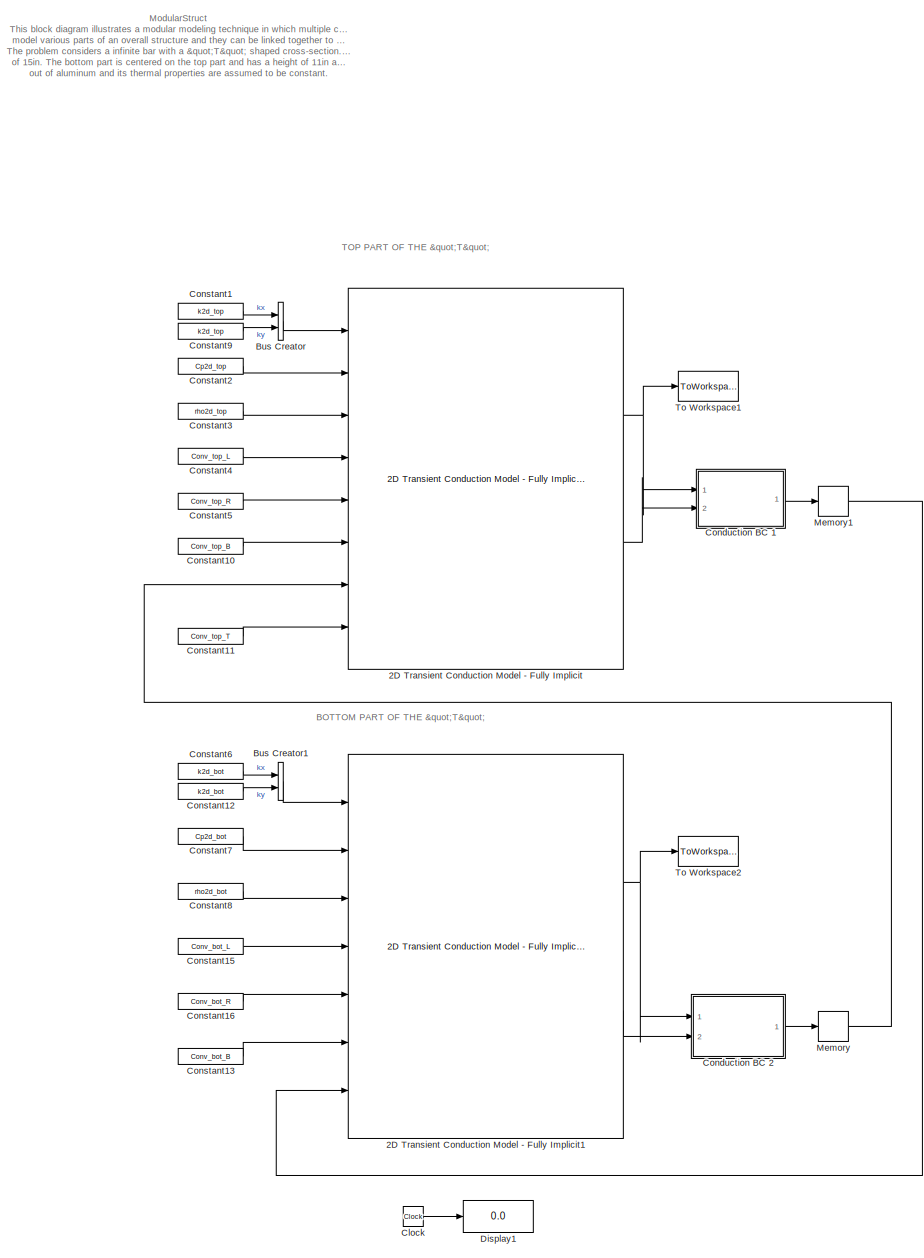
[diagram: root canvas - part 1/1, most of the canvas]
MODEL slx_9792ec130105
KIND model
CONFIG AbsTol = auto
CONFIG FixedStep = dt
CONFIG MaxStep = auto
CONFIG MinStep = auto
CONFIG RelTol = 1e-3
CONFIG SampleTimeConstraint = Unconstrained
CONFIG Solver = FixedStepDiscrete
CONFIG SolverMode = Auto
CONFIG SolverName = FixedStepDiscrete
CONFIG StartTime = 0.0
CONFIG StopTime = tsim
BLOCK [Reference] 2D Transient Conduction Model - Fully Implicit  REF=lib_Conduction_2DCondFullyImplicit/2D Transient Conduction Model - Fully Implicit
  BN_M = double(gcb)
  Ports = [8, 2]
  SourceBlock = lib_Conduction_2DCondFullyImplicit/2D Transient Conduction Model - Fully Implicit
  SourceType = TSAT: 2-D Transient Conduction Model - Fully Implicit Block
  T0_M = T02d_top
  condB_M = on
  condL_M = off
  condR_M = off
  condT_M = off
  convB_M = on
  convL_M = on
  convR_M = on
  convT_M = on
  dt_M = dt
  radB_M = off
  radL_M = off
  radR_M = off
  radT_M = off
  shape_M = Planar in both directions
  x_M = x_top
  y_M = y0_top
BLOCK [Reference] 2D Transient Conduction Model - Fully Implicit1  REF=lib_Conduction_2DCondFullyImplicit/2D Transient Conduction Model - Fully Implicit
  BN_M = double(gcb)
  Ports = [7, 2]
  SourceBlock = lib_Conduction_2DCondFullyImplicit/2D Transient Conduction Model - Fully Implicit
  SourceType = TSAT: 2-D Transient Conduction Model - Fully Implicit Block
  T0_M = T02d_bot
  condB_M = off
  condL_M = off
  condR_M = off
  condT_M = on
  convB_M = on
  convL_M = on
  convR_M = on
  convT_M = off
  dt_M = dt
  radB_M = off
  radL_M = off
  radR_M = off
  radT_M = off
  shape_M = Planar in both directions
  x_M = x_bot
  y_M = y0_bot
BLOCK [BusCreator] Bus Creator
  DisplayOption = bar
  Inputs = 2
  Ports = [2, 1]
BLOCK [BusCreator] Bus Creator1
  DisplayOption = bar
  Inputs = 2
  Ports = [2, 1]
BLOCK [Clock] Clock
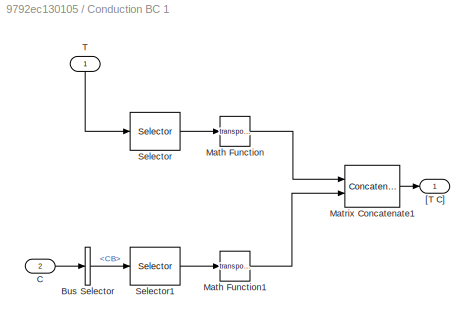
BLOCK [SubSystem] Conduction BC 1
  Ports = [2, 1]
  RequestExecContextInheritance = off
BLOCK [BusSelector] Conduction BC 1/Bus Selector
  OutputSignals = CB
  Ports = [1, 1]
BLOCK [Inport] Conduction BC 1/C
  IconDisplay = Port number
  Port = 2
BLOCK [Math] Conduction BC 1/Math Function
  Operator = transpose
  Ports = [1, 1]
BLOCK [Math] Conduction BC 1/Math Function1
  Operator = transpose
  Ports = [1, 1]
BLOCK [Concatenate] Conduction BC 1/Matrix Concatenate1
  ConcatenateDimension = 2
  Mode = Multidimensional array
  Ports = [2, 1]
BLOCK [Selector] Conduction BC 1/Selector
  IndexOptions = Index vector (dialog),Index vector (dialog)
  Indices = 1,[8:15]
  InputPortWidth = 3
  NumberOfDimensions = 2
  OutputSizes = 1,1
  Ports = [1, 1]
BLOCK [Selector] Conduction BC 1/Selector1
  IndexOptions = Index vector (dialog),Index vector (dialog)
  Indices = 1,[8:15]
  InputPortWidth = 3
  NumberOfDimensions = 2
  OutputSizes = 1,1
  Ports = [1, 1]
BLOCK [Inport] Conduction BC 1/T
  IconDisplay = Port number
BLOCK [Outport] Conduction BC 1/[T C]
  IconDisplay = Port number
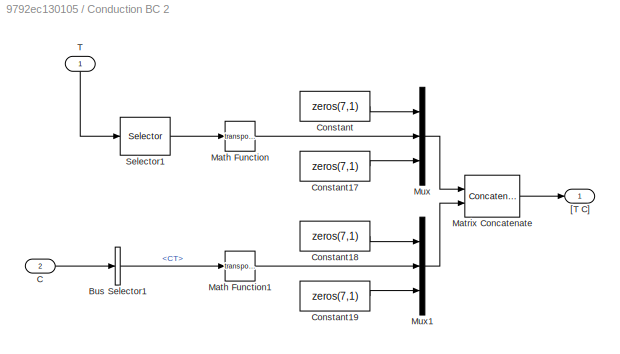
BLOCK [SubSystem] Conduction BC 2
  Ports = [2, 1]
  RequestExecContextInheritance = off
BLOCK [BusSelector] Conduction BC 2/Bus Selector1
  OutputSignals = CT
  Ports = [1, 1]
BLOCK [Inport] Conduction BC 2/C
  IconDisplay = Port number
  Port = 2
BLOCK [Constant] Conduction BC 2/Constant
  Value = zeros(7,1)
BLOCK [Constant] Conduction BC 2/Constant17
  Value = zeros(7,1)
BLOCK [Constant] Conduction BC 2/Constant18
  Value = zeros(7,1)
BLOCK [Constant] Conduction BC 2/Constant19
  Value = zeros(7,1)
BLOCK [Math] Conduction BC 2/Math Function
  Operator = transpose
  Ports = [1, 1]
BLOCK [Math] Conduction BC 2/Math Function1
  Operator = transpose
  Ports = [1, 1]
BLOCK [Concatenate] Conduction BC 2/Matrix Concatenate
  ConcatenateDimension = 2
  Mode = Multidimensional array
  Ports = [2, 1]
BLOCK [Mux] Conduction BC 2/Mux
  DisplayOption = bar
  Inputs = 3
  Ports = [3, 1]
BLOCK [Mux] Conduction BC 2/Mux1
  DisplayOption = bar
  Inputs = 3
  Ports = [3, 1]
BLOCK [Selector] Conduction BC 2/Selector1
  IndexOptions = Index vector (dialog),Select all
  Indices = m_bot,Cind_bot
  InputPortWidth = 3
  NumberOfDimensions = 2
  OutputSizes = 1,1
  Ports = [1, 1]
BLOCK [Inport] Conduction BC 2/T
  IconDisplay = Port number
BLOCK [Outport] Conduction BC 2/[T C]
  IconDisplay = Port number
BLOCK [Constant] Constant1
  Value = k2d_top
BLOCK [Constant] Constant10
  Value = Conv_top_B
BLOCK [Constant] Constant11
  Value = Conv_top_T
BLOCK [Constant] Constant12
  Value = k2d_bot
BLOCK [Constant] Constant13
  Value = Conv_bot_B
BLOCK [Constant] Constant15
  Value = Conv_bot_L
BLOCK [Constant] Constant16
  Value = Conv_bot_R
BLOCK [Constant] Constant2
  Value = Cp2d_top
BLOCK [Constant] Constant3
  Value = rho2d_top
BLOCK [Constant] Constant4
  Value = Conv_top_L
BLOCK [Constant] Constant5
  Value = Conv_top_R
BLOCK [Constant] Constant6
  Value = k2d_bot
BLOCK [Constant] Constant7
  Value = Cp2d_bot
BLOCK [Constant] Constant8
  Value = rho2d_bot
BLOCK [Constant] Constant9
  Value = k2d_top
BLOCK [Display] Display1
  Decimation = 1
  Ports = [1]
BLOCK [Memory] Memory
  X0 = Cond_top_B_IC
BLOCK [Memory] Memory1
  X0 = Cond_bot_T_IC
BLOCK [ToWorkspace] To Workspace1
  FixptAsFi = on
  MaxDataPoints = inf
  Ports = [1]
  SampleTime = -1
  Save2DSignal = 3-D array (concatenate along third dimension)
  SaveFormat = Timeseries
  VariableName = T2d_top
BLOCK [ToWorkspace] To Workspace2
  FixptAsFi = on
  MaxDataPoints = inf
  Ports = [1]
  SampleTime = -1
  Save2DSignal = 3-D array (concatenate along third dimension)
  SaveFormat = Timeseries
  VariableName = T2d_bot
ANNOTATION (root): BOTTOM PART OF THE "T"
ANNOTATION (root): ModularStruct This block diagram illustrates a modular modeling technique in which multiple conduction blocks can be used to model various parts of an overall structure and they can be linked together to model the overall structure as a whole. The problem considers a infinite bar with a "T" shaped cross-section. The top part has a height of 4in and a width of 15in. The bottom part is centered on t...<+450ch>
ANNOTATION (root): TOP PART OF THE "T"
NET 2D Transient Conduction Model - Fully Implicit1:1 -> Conduction BC 2:1, To Workspace2:1
LINE 2D Transient Conduction Model - Fully Implicit1:2 -> Conduction BC 2:2
NET 2D Transient Conduction Model - Fully Implicit:1 -> Conduction BC 1:1, To Workspace1:1
LINE 2D Transient Conduction Model - Fully Implicit:2 -> Conduction BC 1:2
LINE Bus Creator1:1 -> 2D Transient Conduction Model - Fully Implicit1:1
LINE Bus Creator:1 -> 2D Transient Conduction Model - Fully Implicit:1
LINE Clock:1 -> Display1:1
LINE Conduction BC 1/Bus Selector:1 -> Conduction BC 1/Selector1:1
LINE Conduction BC 1/C:1 -> Conduction BC 1/Bus Selector:1
LINE Conduction BC 1/Math Function1:1 -> Conduction BC 1/Matrix Concatenate1:2
LINE Conduction BC 1/Math Function:1 -> Conduction BC 1/Matrix Concatenate1:1
LINE Conduction BC 1/Matrix Concatenate1:1 -> Conduction BC 1/[T C]:1
LINE Conduction BC 1/Selector1:1 -> Conduction BC 1/Math Function1:1
LINE Conduction BC 1/Selector:1 -> Conduction BC 1/Math Function:1
LINE Conduction BC 1/T:1 -> Conduction BC 1/Selector:1
LINE Conduction BC 1:1 -> Memory1:1
LINE Conduction BC 2/Bus Selector1:1 -> Conduction BC 2/Math Function1:1
LINE Conduction BC 2/C:1 -> Conduction BC 2/Bus Selector1:1
LINE Conduction BC 2/Constant17:1 -> Conduction BC 2/Mux:3
LINE Conduction BC 2/Constant18:1 -> Conduction BC 2/Mux1:1
LINE Conduction BC 2/Constant19:1 -> Conduction BC 2/Mux1:3
LINE Conduction BC 2/Constant:1 -> Conduction BC 2/Mux:1
LINE Conduction BC 2/Math Function1:1 -> Conduction BC 2/Mux1:2
LINE Conduction BC 2/Math Function:1 -> Conduction BC 2/Mux:2
LINE Conduction BC 2/Matrix Concatenate:1 -> Conduction BC 2/[T C]:1
LINE Conduction BC 2/Mux1:1 -> Conduction BC 2/Matrix Concatenate:2
LINE Conduction BC 2/Mux:1 -> Conduction BC 2/Matrix Concatenate:1
LINE Conduction BC 2/Selector1:1 -> Conduction BC 2/Math Function:1
LINE Conduction BC 2/T:1 -> Conduction BC 2/Selector1:1
LINE Conduction BC 2:1 -> Memory:1
LINE Constant10:1 -> 2D Transient Conduction Model - Fully Implicit:6
LINE Constant11:1 -> 2D Transient Conduction Model - Fully Implicit:8
LINE Constant12:1 -> Bus Creator1:2
LINE Constant13:1 -> 2D Transient Conduction Model - Fully Implicit1:6
LINE Constant15:1 -> 2D Transient Conduction Model - Fully Implicit1:4
LINE Constant16:1 -> 2D Transient Conduction Model - Fully Implicit1:5
LINE Constant1:1 -> Bus Creator:1
LINE Constant2:1 -> 2D Transient Conduction Model - Fully Implicit:2
LINE Constant3:1 -> 2D Transient Conduction Model - Fully Implicit:3
LINE Constant4:1 -> 2D Transient Conduction Model - Fully Implicit:4
LINE Constant5:1 -> 2D Transient Conduction Model - Fully Implicit:5
LINE Constant6:1 -> Bus Creator1:1
LINE Constant7:1 -> 2D Transient Conduction Model - Fully Implicit1:2
LINE Constant8:1 -> 2D Transient Conduction Model - Fully Implicit1:3
LINE Constant9:1 -> Bus Creator:2
LINE Memory1:1 -> 2D Transient Conduction Model - Fully Implicit1:7
LINE Memory:1 -> 2D Transient Conduction Model - Fully Implicit:7
note: NET lines group one-source signal fan-out (src -> all destinations, sorted); 1:1 wires keep LINE
